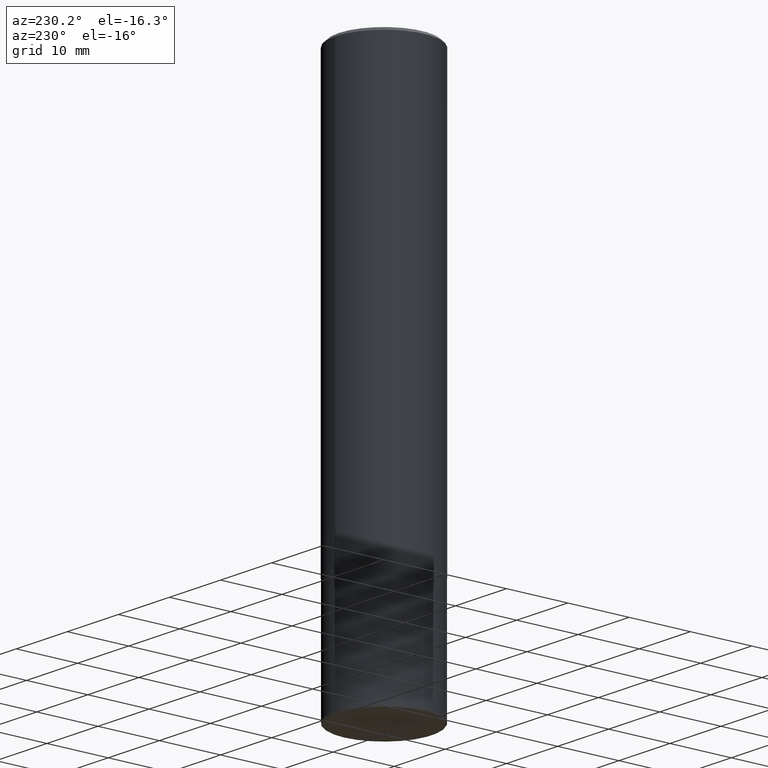
[diagram: clean part render]
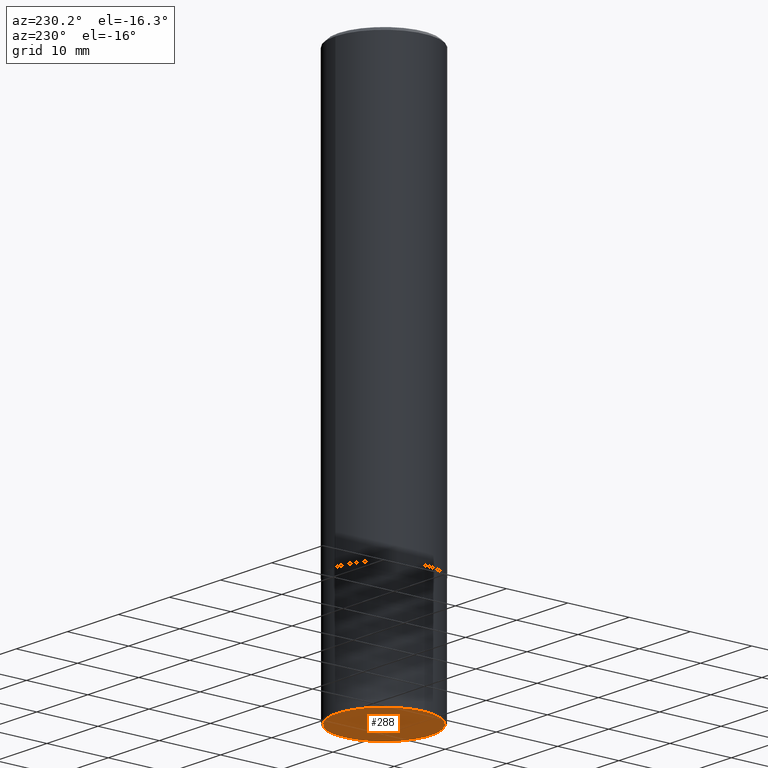
[diagram: same view with one face highlighted and labeled with its STEP entity id]
A machine part, auxiliary view. The second image highlights one B-rep face of the part: STEP entity #288.
In plain terms, the highlighted planar face has unit normal (0, -0, -1).
Its self-contained STEP definition (entity closure, byte-faithful):
#10 = VERTEX_POINT ( 'NONE', #269 ) ;
#39 = DIRECTION ( 'NONE',  ( -2.445468806185136597E-29, 3.491481338843145583E-15, 1.000000000000000000 ) ) ;
#44 = EDGE_LOOP ( 'NONE', ( #366, #78 ) ) ;
#62 = PLANE ( 'NONE',  #373 ) ;
#78 = ORIENTED_EDGE ( 'NONE', *, *, #260, .F. ) ;
#123 = DIRECTION ( 'NONE',  ( 2.438088387897960049E-29, -3.491481338843145188E-15, -1.000000000000000000 ) ) ;
#161 = DIRECTION ( 'NONE',  ( -1.000000000000000000, 6.982962677686265922E-15, -4.876176775795935793E-29 ) ) ;
#166 = CIRCLE ( 'NONE', #405, 0.3024999999999999911 ) ;
#170 = VERTEX_POINT ( 'NONE', #385 ) ;
#221 = CARTESIAN_POINT ( 'NONE',  ( 1.297351265854343644E-28, -5.898552965075025237E-15, -3.499999999999999112 ) ) ;
#253 = DIRECTION ( 'NONE',  ( -2.445468806185136597E-29, 3.491481338843145583E-15, 1.000000000000000000 ) ) ;
#260 = EDGE_CURVE ( 'NONE', #10, #170, #357, .T. ) ;
#261 = DIRECTION ( 'NONE',  ( 1.000000000000000000, -6.982962677686267499E-15, 0.000000000000000000 ) ) ;
#269 = CARTESIAN_POINT ( 'NONE',  ( -0.3024999999999999911, -1.001780836679448390E-14, -3.499999999999999112 ) ) ;
#282 = CARTESIAN_POINT ( 'NONE',  ( 8.559140821647976968E-29, -1.222018468595100619E-14, -3.499999999999999112 ) ) ;
#288 = ADVANCED_FACE ( 'NONE', ( #416 ), #62, .T. ) ;
#339 = AXIS2_PLACEMENT_3D ( 'NONE', #282, #253, #382 ) ;
#357 = CIRCLE ( 'NONE', #339, 0.3024999999999999911 ) ;
#366 = ORIENTED_EDGE ( 'NONE', *, *, #394, .F. ) ;
#373 = AXIS2_PLACEMENT_3D ( 'NONE', #221, #123, #161 ) ;
#382 = DIRECTION ( 'NONE',  ( 1.000000000000000000, -6.982962677686267499E-15, 0.000000000000000000 ) ) ;
#385 = CARTESIAN_POINT ( 'NONE',  ( 0.3024999999999999911, -1.433253089595110124E-14, -3.499999999999999112 ) ) ;
#390 = CARTESIAN_POINT ( 'NONE',  ( 8.559140821647976968E-29, -1.222018468595100619E-14, -3.499999999999999112 ) ) ;
#394 = EDGE_CURVE ( 'NONE', #170, #10, #166, .T. ) ;
#405 = AXIS2_PLACEMENT_3D ( 'NONE', #390, #39, #261 ) ;
#416 = FACE_OUTER_BOUND ( 'NONE', #44, .T. ) ;